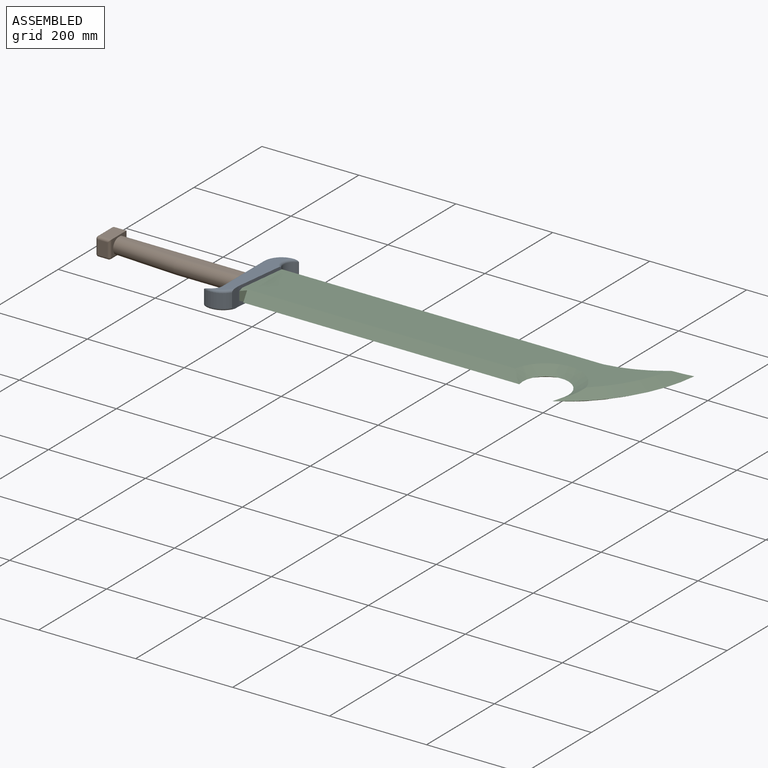
[diagram: assembled view]
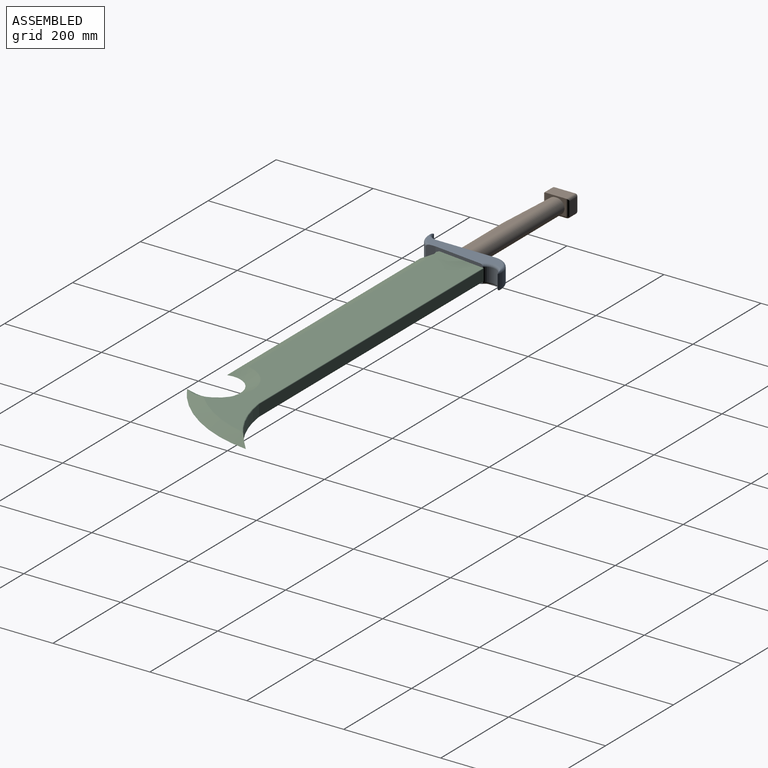
[diagram: assembled view, second angle]
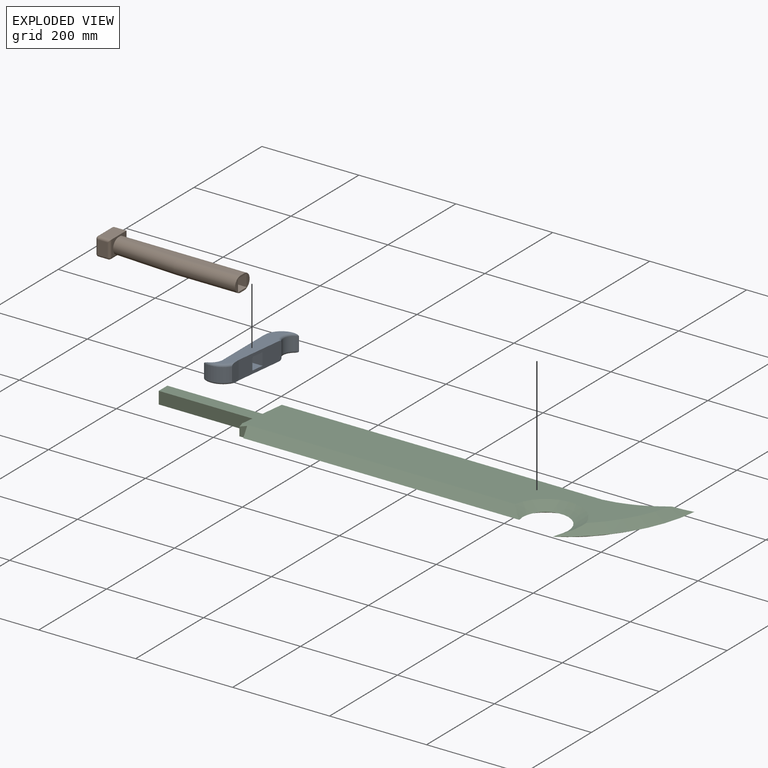
[diagram: exploded view]
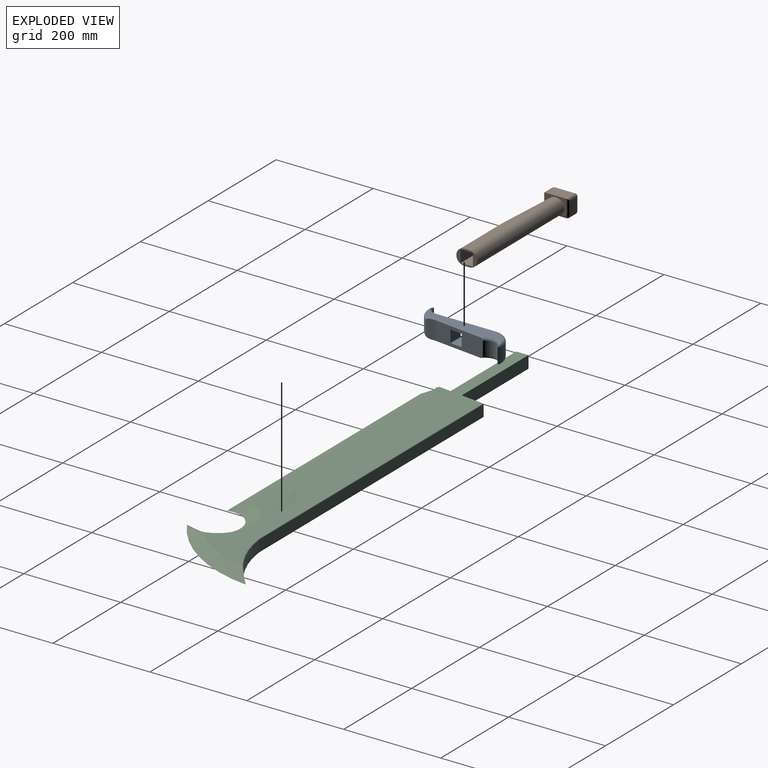
[diagram: exploded view, second angle]
ASSEMBLY  parts=3 mates=2
PART A: 23 faces, bbox 71.8x202.1x38.1 mm
  f0: plane 120.53x27.94mm, normal (-1,0,0), area 2722.5mm2, adj f1,f6,f9,f10,f11,f12,f17,f22
  f1: cylinder r=22.24mm len=27.94mm, axis (0,0,-1), area 953.5mm2, adj f0,f2,f16,f21
  f2: cylinder r=39.08mm len=46.87mm, axis (0,0,-1), area 1496.4mm2, adj f1,f3,f14,f19
  f3: plane 38.1x19.84mm, normal (1,0,0), area 733mm2, adj f2,f4,f7,f8,f14,f19
  f4: plane 107.1x38.1mm, normal (0.99,-0.12,0), area 3447.5mm2, adj f3,f5,f7,f8,f9,f10,f11,f12
  f5: cylinder r=22.32mm len=37.31mm, axis (0,0,-1), area 1301.8mm2, adj f4,f6,f13,f18
  f6: cylinder r=38.58mm len=48.42mm, axis (0,0,-1), area 1971.2mm2, adj f0,f5,f15,f20
  f7: plane 172.89x40.75mm, normal (0,0,1), area 3919mm2, adj f3,f4,f18,f19,f20,f21,f22
  f8: plane 172.89x40.75mm, normal (0,0,-1), area 3919mm2, adj f3,f4,f13,f14,f15,f16,f17
  f9: plane 32.74x25.4mm, normal (0,-1,0), area 831.7mm2, adj f0,f4,f10,f12
  f10: plane 32.74x25.4mm, normal (0,0,1), area 792.1mm2, adj f0,f4,f9,f11
  f11: plane 29.63x25.4mm, normal (0,1,0), area 752.5mm2, adj f0,f4,f10,f12
  f12: plane 32.74x25.4mm, normal (0,0,-1), area 792.1mm2, adj f0,f4,f9,f11
  f13: torus R=27.4mm, axis (0,0,1), area 363.2mm2, adj f4,f5,f8,f15
  f14: torus R=34mm, axis (0,0,1), area 379.1mm2, adj f2,f3,f8,f16
  f15: torus R=33.5mm, axis (0,0,1), area 490.9mm2, adj f6,f8,f13,f17
  f16: torus R=27.32mm, axis (0,0,1), area 232.5mm2, adj f1,f8,f14,f17
  f17: cylinder r=5.08mm len=120.53mm, axis (0,-1,0), area 961.8mm2, adj f0,f8,f15,f16
  f18: torus R=27.4mm, axis (0,0,1), area 363.2mm2, adj f4,f5,f7,f20
  f19: torus R=34mm, axis (0,0,1), area 379.1mm2, adj f2,f3,f7,f21
  f20: torus R=33.5mm, axis (0,0,1), area 490.9mm2, adj f6,f7,f18,f22
  f21: torus R=27.32mm, axis (0,0,1), area 232.5mm2, adj f1,f7,f19,f22
  f22: cylinder r=5.08mm len=120.53mm, axis (0,1,0), area 961.8mm2, adj f0,f7,f20,f21
PART B: 38 faces, bbox 288.7x53.8x39.6 mm
  f0: plane 43.01x31.75mm, normal (1,0,0), area 504mm2, adj f1,f2,f9,f10,f11,f12,f14,f16
  f1: plane 257.14x11.26mm, normal (0,0,1), area 2370.2mm2, adj f0,f3,f14,f15,f16
  f2: plane 257.14x11.26mm, normal (0,0,-1), area 2370.2mm2, adj f0,f14,f15,f16,f17
  f3: plane 43.66x34.45mm, normal (1,0,0), area 525mm2, adj f1,f7,f15,f16,f21,f22,f23,f24
  f4: plane 27.94x20mm, normal (0,1,0), area 558.9mm2, adj f24,f25,f33,f34
  f5: plane 42.23x27.94mm, normal (-1,0,0), area 1179.8mm2, adj f26,f31,f34,f37
  f6: plane 27.94x20mm, normal (0,-1,0), area 558.9mm2, adj f20,f21,f31,f32
  f7: plane 42.23x25.08mm, normal (0,0,1), area 1059.2mm2, adj f3,f20,f25,f26
  f8: plane 42.23x20.38mm, normal (0,0,-1), area 848.8mm2, adj f17,f18,f19,f22,f23,f32,f33,f37
  f9: plane 165.1x25.4mm, normal (0,0,-1), area 4193.5mm2, adj f0,f10,f12,f13
  f10: plane 165.1x25.4mm, normal (0,1,0), area 4193.5mm2, adj f0,f9,f11,f13
  f11: plane 165.1x25.4mm, normal (0,0,1), area 4193.5mm2, adj f0,f10,f12,f13
  f12: plane 165.1x25.4mm, normal (0,-1,0), area 4193.5mm2, adj f0,f9,f11,f13
  f13: plane 25.4x25.4mm, normal (1,0,0), area 645.2mm2, adj f9,f10,f11,f12
  f14: cylinder r=15.88mm len=126.51mm, axis (-1,0,0), area 6309.5mm2, adj f0,f1,f2,f15
  f15: cylinder r=15.88mm len=131.6mm, axis (-1,0.06,0), area 6515.4mm2, adj f1,f2,f3,f14,f18
  f16: cylinder r=15.88mm len=257.14mm, axis (1,0,0), area 12824.1mm2, adj f0,f1,f2,f3,f19
  f17: cylinder r=5.08mm len=4.71mm, axis (0,-1,0), area 19.4mm2, adj f2,f8,f18,f19
  f18: bspline ~9.2x5.4mm, area 50.5mm2, adj f8,f15,f17,f22
  f19: bspline ~9.12x5.4mm, area 50.4mm2, adj f8,f16,f17,f23
  f20: cylinder r=5.08mm len=25.08mm, axis (-1,0,0), area 185.4mm2, adj f6,f7,f21,f27
  f21: cylinder r=5.08mm len=33.02mm, axis (0,0,-1), area 248.8mm2, adj f3,f6,f20,f28
  f22: cylinder r=5.08mm len=12.78mm, axis (0,1,0), area 102mm2, adj f3,f8,f18,f28
  f23: cylinder r=5.08mm len=11.12mm, axis (0,1,0), area 88.8mm2, adj f3,f8,f19,f29
  f24: cylinder r=5.08mm len=33.02mm, axis (0,0,-1), area 248.8mm2, adj f3,f4,f25,f29
  f25: cylinder r=5.08mm len=25.08mm, axis (1,0,0), area 185.4mm2, adj f4,f7,f24,f30
  f26: cylinder r=5.08mm len=42.23mm, axis (0,1,0), area 337mm2, adj f5,f7,f27,f30
  f27: sphere r=5.08mm, area 40.5mm2, adj f20,f26,f31
  f28: sphere r=5.08mm, area 40.5mm2, adj f21,f22,f32
  f29: sphere r=5.08mm, area 40.5mm2, adj f23,f24,f33
  f30: sphere r=5.08mm, area 40.5mm2, adj f25,f26,f34
  f31: cylinder r=5.08mm len=27.94mm, axis (0,0,-1), area 223mm2, adj f5,f6,f27,f35
  f32: cylinder r=5.08mm len=20mm, axis (1,0,0), area 159.6mm2, adj f6,f8,f28,f35
  f33: cylinder r=5.08mm len=20mm, axis (-1,0,0), area 159.6mm2, adj f4,f8,f29,f36
  f34: cylinder r=5.08mm len=27.94mm, axis (0,0,-1), area 223mm2, adj f4,f5,f30,f36
  f35: sphere r=5.08mm, area 40.5mm2, adj f31,f32,f37
  f36: sphere r=5.08mm, area 40.5mm2, adj f33,f34,f37
  f37: cylinder r=5.08mm len=42.23mm, axis (0,-1,0), area 337mm2, adj f5,f8,f35,f36
PART C: 23 faces, bbox 1003.9x222.2x25.8 mm
  f0: plane 193.24x25.4mm, normal (0,-1,0), area 4908.3mm2, adj f1,f8,f9,f10
  f1: plane 32.55x25.4mm, normal (-0.99,0.12,0), area 807.3mm2, adj f0,f2,f9,f10,f11,f15
  f2: plane 23.42x12.3mm, normal (0.39,-0.92,0), area 278mm2, adj f1,f3,f11,f15
  f3: plane 23.42x23.42mm, normal (-0.94,-0.34,0), area 291mm2, adj f2,f11,f15
  f4: cylinder r=234.38mm len=139.61mm, axis (0,0,-1), area 3230mm2, adj f5,f14,f18,f20,f22
  f5: plane 661.49x22.86mm, normal (0,1,0), area 15121.7mm2, adj f4,f6,f19,f21
  f6: plane 49.22x25.47mm, normal (-0.99,0.12,0), area 1257.1mm2, adj f5,f7,f9,f10,f19,f21
  f7: plane 196.36x25.4mm, normal (0,1,0), area 4987.4mm2, adj f6,f8,f9,f10
  f8: plane 25.4x25.4mm, normal (-1,0,0), area 645.2mm2, adj f0,f7,f9,f10
  f9: plane 973x142mm, normal (0,0,1), area 72397.7mm2, adj f0,f1,f6,f7,f8,f11,f13,f14
  f10: plane 973x142mm, normal (0,0,-1), area 72397.7mm2, adj f0,f1,f6,f7,f8,f15,f16,f18
  f11: plane 590.14x25.4mm, normal (0,-0.45,0.89), area 15963.5mm2, adj f1,f2,f3,f9,f13,f15
  f12: plane 23.68x15.56mm, normal (-0.43,0.12,0.89), area 124.5mm2, adj f13,f14,f17
  f13: cone r=47.18mm half-angle=63.4deg, axis (0,0,1), area 5426.5mm2, adj f9,f11,f12,f14,f16
  f14: cone r=267.53mm half-angle=63.4deg, axis (0,0,-1), area 5998.2mm2, adj f4,f9,f12,f13,f18,f22
  f15: plane 590.14x25.4mm, normal (0,-0.45,-0.89), area 15963.5mm2, adj f1,f2,f3,f10,f11,f16
  f16: cone r=72.58mm half-angle=63.4deg, axis (0,0,-1), area 5426.5mm2, adj f10,f13,f15,f17,f18
  f17: plane 23.68x15.56mm, normal (-0.43,0.12,-0.89), area 124.5mm2, adj f12,f16,f18
  f18: cone r=292.93mm half-angle=63.4deg, axis (0,0,1), area 5998.2mm2, adj f4,f10,f14,f16,f17,f20
  f19: cylinder r=1.27mm len=661.73mm, axis (-1,0,0), area 1319.9mm2, adj f5,f6,f10,f20
  f20: torus R=235.65mm, axis (0,0,1), area 241mm2, adj f4,f10,f18,f19
  f21: cylinder r=1.27mm len=661.73mm, axis (1,0,0), area 1319.9mm2, adj f5,f6,f9,f22
  f22: torus R=235.65mm, axis (0,0,1), area 241mm2, adj f4,f9,f14,f21
PLACE A t=(253.32,235.97,-105.34)mm
PLACE B t=(96.73,242.83,-105.34)mm
PLACE C t=(271.77,272.6,-105.34)mm
MATE fastened A.f10 <-> C.f10  axis (0,0,1) through (263.46,224.58,-118.04)mm
MATE fastened B.f11 <-> A.f10  axis (0,0,1) through (233.83,224.58,-118.04)mm
